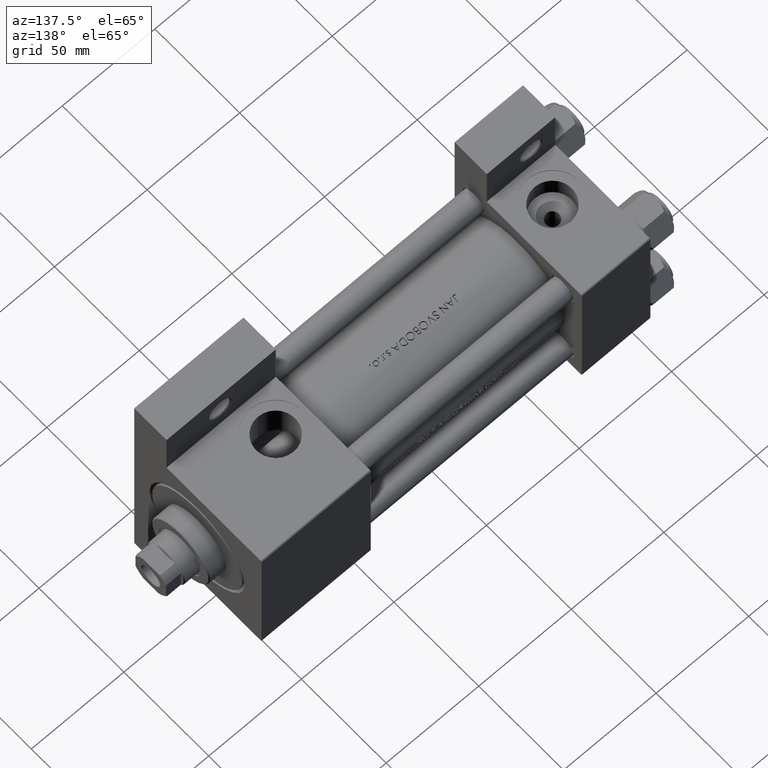
[diagram: clean part render]
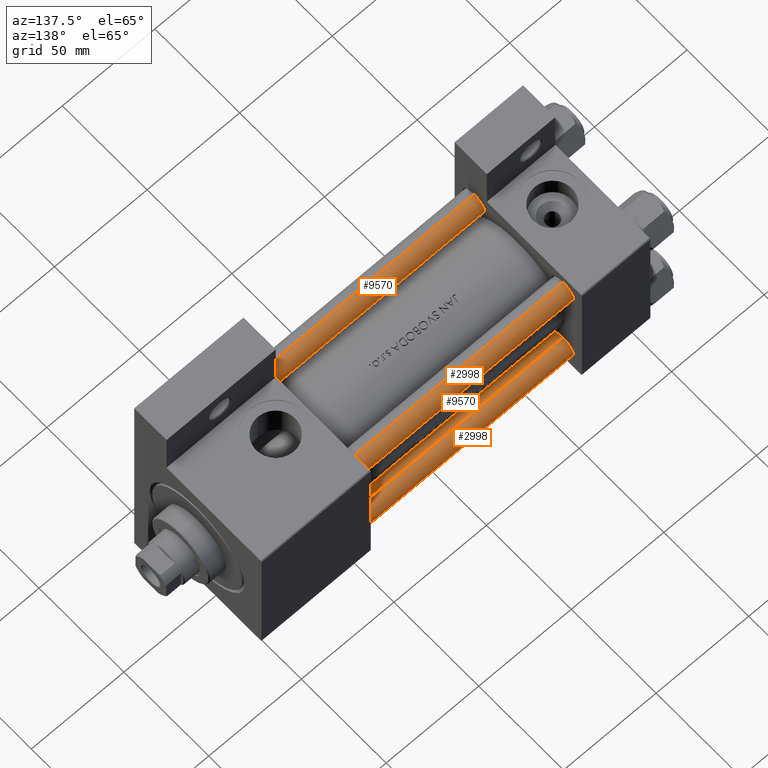
[diagram: same view with one multi-face feature highlighted, each face labeled with its STEP entity id]
A machine part, auxiliary view. The highlighted faces form ONE feature: a constant-radius fillet chain: 4 tangent blend faces with common blend radius 6 mm. The faces share edges in the B-rep.
Their STEP definitions:
[1] entity #2998 (Cylinder):
#312 = DIRECTION ( 'NONE',  ( 1.000000000000000000, 0.000000000000000000, 0.000000000000000000 ) ) ;
#1968 = VERTEX_POINT ( 'NONE', #25017 ) ;
#1975 = DIRECTION ( 'NONE',  ( 1.000000000000000000, 0.000000000000000000, 0.000000000000000000 ) ) ;
#2342 = AXIS2_PLACEMENT_3D ( 'NONE', #23512, #38950, #13515 ) ;
#2998 = ADVANCED_FACE ( 'NONE', ( #12028 ), #23762, .T. ) ;
#3352 = VECTOR ( 'NONE', #36297, 1000.000000000000000 ) ;
#3506 = CARTESIAN_POINT ( 'NONE',  ( 6.000000000000000888, 7.347880794884119736E-16, 179.5000000000001137 ) ) ;
#5469 = CARTESIAN_POINT ( 'NONE',  ( 0.000000000000000000, 0.000000000000000000, 0.5000000000000559552 ) ) ;
#9577 = ORIENTED_EDGE ( 'NONE', *, *, #24014, .T. ) ;
#11483 = EDGE_CURVE ( 'NONE', #27546, #28308, #48598, .T. ) ;
#11575 = ORIENTED_EDGE ( 'NONE', *, *, #37029, .F. ) ;
#12028 = FACE_OUTER_BOUND ( 'NONE', #31228, .T. ) ;
#13515 = DIRECTION ( 'NONE',  ( -1.000000000000000000, 0.000000000000000000, 0.000000000000000000 ) ) ;
#14325 = CARTESIAN_POINT ( 'NONE',  ( -6.000000000000000888, 0.000000000000000000, 180.0000000000000000 ) ) ;
#14580 = ORIENTED_EDGE ( 'NONE', *, *, #16681, .T. ) ;
#16681 = EDGE_CURVE ( 'NONE', #44809, #1968, #49059, .T. ) ;
#20936 = CARTESIAN_POINT ( 'NONE',  ( -6.000000000000000888, 0.000000000000000000, 179.5000000000001137 ) ) ;
#23512 = CARTESIAN_POINT ( 'NONE',  ( 0.000000000000000000, 0.000000000000000000, 180.0000000000000000 ) ) ;
#23762 = CYLINDRICAL_SURFACE ( 'NONE', #2342, 6.000000000000000888 ) ;
#24014 = EDGE_CURVE ( 'NONE', #28308, #44809, #27811, .T. ) ;
#24085 = DIRECTION ( 'NONE',  ( -0.000000000000000000, -0.000000000000000000, -1.000000000000000000 ) ) ;
#25017 = CARTESIAN_POINT ( 'NONE',  ( -6.000000000000000888, 0.000000000000000000, 0.5000000000000559552 ) ) ;
#27152 = AXIS2_PLACEMENT_3D ( 'NONE', #34699, #38928, #312 ) ;
#27546 = VERTEX_POINT ( 'NONE', #20936 ) ;
#27811 = LINE ( 'NONE', #34785, #46010 ) ;
#28308 = VERTEX_POINT ( 'NONE', #3506 ) ;
#31228 = EDGE_LOOP ( 'NONE', ( #35166, #9577, #14580, #11575 ) ) ;
#34699 = CARTESIAN_POINT ( 'NONE',  ( 0.000000000000000000, 0.000000000000000000, 179.5000000000001137 ) ) ;
#34785 = CARTESIAN_POINT ( 'NONE',  ( 6.000000000000000888, 7.347880794884119736E-16, 180.0000000000000000 ) ) ;
#35166 = ORIENTED_EDGE ( 'NONE', *, *, #11483, .T. ) ;
#36297 = DIRECTION ( 'NONE',  ( -0.000000000000000000, -0.000000000000000000, -1.000000000000000000 ) ) ;
#36605 = DIRECTION ( 'NONE',  ( -0.000000000000000000, -0.000000000000000000, 1.000000000000000000 ) ) ;
#37029 = EDGE_CURVE ( 'NONE', #27546, #1968, #44248, .T. ) ;
#38795 = CARTESIAN_POINT ( 'NONE',  ( 6.000000000000000888, 7.347880794884119736E-16, 0.5000000000000559552 ) ) ;
#38928 = DIRECTION ( 'NONE',  ( 0.000000000000000000, 0.000000000000000000, -1.000000000000000000 ) ) ;
#38950 = DIRECTION ( 'NONE',  ( -0.000000000000000000, -0.000000000000000000, -1.000000000000000000 ) ) ;
#40314 = AXIS2_PLACEMENT_3D ( 'NONE', #5469, #36605, #1975 ) ;
#44248 = LINE ( 'NONE', #14325, #3352 ) ;
#44809 = VERTEX_POINT ( 'NONE', #38795 ) ;
#46010 = VECTOR ( 'NONE', #24085, 1000.000000000000000 ) ;
#48598 = CIRCLE ( 'NONE', #27152, 6.000000000000000888 ) ;
#49059 = CIRCLE ( 'NONE', #40314, 6.000000000000000888 ) ;
[2] entity #9570 (Cylinder):
#169 = AXIS2_PLACEMENT_3D ( 'NONE', #38430, #38926, #46889 ) ;
#1968 = VERTEX_POINT ( 'NONE', #25017 ) ;
#3288 = CIRCLE ( 'NONE', #8100, 6.000000000000000888 ) ;
#3352 = VECTOR ( 'NONE', #36297, 1000.000000000000000 ) ;
#3506 = CARTESIAN_POINT ( 'NONE',  ( 6.000000000000000888, 7.347880794884119736E-16, 179.5000000000001137 ) ) ;
#4764 = DIRECTION ( 'NONE',  ( -0.000000000000000000, -0.000000000000000000, 1.000000000000000000 ) ) ;
#6023 = ORIENTED_EDGE ( 'NONE', *, *, #22810, .T. ) ;
#8100 = AXIS2_PLACEMENT_3D ( 'NONE', #43149, #13729, #39909 ) ;
#8852 = EDGE_CURVE ( 'NONE', #28308, #27546, #3288, .T. ) ;
#9570 = ADVANCED_FACE ( 'NONE', ( #31461 ), #19247, .T. ) ;
#13502 = ORIENTED_EDGE ( 'NONE', *, *, #24014, .F. ) ;
#13729 = DIRECTION ( 'NONE',  ( 0.000000000000000000, 0.000000000000000000, -1.000000000000000000 ) ) ;
#14325 = CARTESIAN_POINT ( 'NONE',  ( -6.000000000000000888, 0.000000000000000000, 180.0000000000000000 ) ) ;
#18882 = CIRCLE ( 'NONE', #30066, 6.000000000000000888 ) ;
#19247 = CYLINDRICAL_SURFACE ( 'NONE', #169, 6.000000000000000888 ) ;
#19971 = DIRECTION ( 'NONE',  ( 1.000000000000000000, 0.000000000000000000, 0.000000000000000000 ) ) ;
#20398 = ORIENTED_EDGE ( 'NONE', *, *, #37029, .T. ) ;
#20936 = CARTESIAN_POINT ( 'NONE',  ( -6.000000000000000888, 0.000000000000000000, 179.5000000000001137 ) ) ;
#22810 = EDGE_CURVE ( 'NONE', #1968, #44809, #18882, .T. ) ;
#24014 = EDGE_CURVE ( 'NONE', #28308, #44809, #27811, .T. ) ;
#24085 = DIRECTION ( 'NONE',  ( -0.000000000000000000, -0.000000000000000000, -1.000000000000000000 ) ) ;
#25017 = CARTESIAN_POINT ( 'NONE',  ( -6.000000000000000888, 0.000000000000000000, 0.5000000000000559552 ) ) ;
#27546 = VERTEX_POINT ( 'NONE', #20936 ) ;
#27811 = LINE ( 'NONE', #34785, #46010 ) ;
#28308 = VERTEX_POINT ( 'NONE', #3506 ) ;
#28720 = EDGE_LOOP ( 'NONE', ( #13502, #30531, #20398, #6023 ) ) ;
#30066 = AXIS2_PLACEMENT_3D ( 'NONE', #38912, #4764, #19971 ) ;
#30531 = ORIENTED_EDGE ( 'NONE', *, *, #8852, .T. ) ;
#31461 = FACE_OUTER_BOUND ( 'NONE', #28720, .T. ) ;
#34785 = CARTESIAN_POINT ( 'NONE',  ( 6.000000000000000888, 7.347880794884119736E-16, 180.0000000000000000 ) ) ;
#36297 = DIRECTION ( 'NONE',  ( -0.000000000000000000, -0.000000000000000000, -1.000000000000000000 ) ) ;
#37029 = EDGE_CURVE ( 'NONE', #27546, #1968, #44248, .T. ) ;
#38430 = CARTESIAN_POINT ( 'NONE',  ( 0.000000000000000000, 0.000000000000000000, 180.0000000000000000 ) ) ;
#38795 = CARTESIAN_POINT ( 'NONE',  ( 6.000000000000000888, 7.347880794884119736E-16, 0.5000000000000559552 ) ) ;
#38912 = CARTESIAN_POINT ( 'NONE',  ( 0.000000000000000000, 0.000000000000000000, 0.5000000000000559552 ) ) ;
#38926 = DIRECTION ( 'NONE',  ( -0.000000000000000000, -0.000000000000000000, -1.000000000000000000 ) ) ;
#39909 = DIRECTION ( 'NONE',  ( 1.000000000000000000, 0.000000000000000000, 0.000000000000000000 ) ) ;
#43149 = CARTESIAN_POINT ( 'NONE',  ( 0.000000000000000000, 0.000000000000000000, 179.5000000000001137 ) ) ;
#44248 = LINE ( 'NONE', #14325, #3352 ) ;
#44809 = VERTEX_POINT ( 'NONE', #38795 ) ;
#46010 = VECTOR ( 'NONE', #24085, 1000.000000000000000 ) ;
#46889 = DIRECTION ( 'NONE',  ( -1.000000000000000000, 0.000000000000000000, 0.000000000000000000 ) ) ;
[3] entity #2998 (Cylinder):
#312 = DIRECTION ( 'NONE',  ( 1.000000000000000000, 0.000000000000000000, 0.000000000000000000 ) ) ;
#1968 = VERTEX_POINT ( 'NONE', #25017 ) ;
#1975 = DIRECTION ( 'NONE',  ( 1.000000000000000000, 0.000000000000000000, 0.000000000000000000 ) ) ;
#2342 = AXIS2_PLACEMENT_3D ( 'NONE', #23512, #38950, #13515 ) ;
#2998 = ADVANCED_FACE ( 'NONE', ( #12028 ), #23762, .T. ) ;
#3352 = VECTOR ( 'NONE', #36297, 1000.000000000000000 ) ;
#3506 = CARTESIAN_POINT ( 'NONE',  ( 6.000000000000000888, 7.347880794884119736E-16, 179.5000000000001137 ) ) ;
#5469 = CARTESIAN_POINT ( 'NONE',  ( 0.000000000000000000, 0.000000000000000000, 0.5000000000000559552 ) ) ;
#9577 = ORIENTED_EDGE ( 'NONE', *, *, #24014, .T. ) ;
#11483 = EDGE_CURVE ( 'NONE', #27546, #28308, #48598, .T. ) ;
#11575 = ORIENTED_EDGE ( 'NONE', *, *, #37029, .F. ) ;
#12028 = FACE_OUTER_BOUND ( 'NONE', #31228, .T. ) ;
#13515 = DIRECTION ( 'NONE',  ( -1.000000000000000000, 0.000000000000000000, 0.000000000000000000 ) ) ;
#14325 = CARTESIAN_POINT ( 'NONE',  ( -6.000000000000000888, 0.000000000000000000, 180.0000000000000000 ) ) ;
#14580 = ORIENTED_EDGE ( 'NONE', *, *, #16681, .T. ) ;
#16681 = EDGE_CURVE ( 'NONE', #44809, #1968, #49059, .T. ) ;
#20936 = CARTESIAN_POINT ( 'NONE',  ( -6.000000000000000888, 0.000000000000000000, 179.5000000000001137 ) ) ;
#23512 = CARTESIAN_POINT ( 'NONE',  ( 0.000000000000000000, 0.000000000000000000, 180.0000000000000000 ) ) ;
#23762 = CYLINDRICAL_SURFACE ( 'NONE', #2342, 6.000000000000000888 ) ;
#24014 = EDGE_CURVE ( 'NONE', #28308, #44809, #27811, .T. ) ;
#24085 = DIRECTION ( 'NONE',  ( -0.000000000000000000, -0.000000000000000000, -1.000000000000000000 ) ) ;
#25017 = CARTESIAN_POINT ( 'NONE',  ( -6.000000000000000888, 0.000000000000000000, 0.5000000000000559552 ) ) ;
#27152 = AXIS2_PLACEMENT_3D ( 'NONE', #34699, #38928, #312 ) ;
#27546 = VERTEX_POINT ( 'NONE', #20936 ) ;
#27811 = LINE ( 'NONE', #34785, #46010 ) ;
#28308 = VERTEX_POINT ( 'NONE', #3506 ) ;
#31228 = EDGE_LOOP ( 'NONE', ( #35166, #9577, #14580, #11575 ) ) ;
#34699 = CARTESIAN_POINT ( 'NONE',  ( 0.000000000000000000, 0.000000000000000000, 179.5000000000001137 ) ) ;
#34785 = CARTESIAN_POINT ( 'NONE',  ( 6.000000000000000888, 7.347880794884119736E-16, 180.0000000000000000 ) ) ;
#35166 = ORIENTED_EDGE ( 'NONE', *, *, #11483, .T. ) ;
#36297 = DIRECTION ( 'NONE',  ( -0.000000000000000000, -0.000000000000000000, -1.000000000000000000 ) ) ;
#36605 = DIRECTION ( 'NONE',  ( -0.000000000000000000, -0.000000000000000000, 1.000000000000000000 ) ) ;
#37029 = EDGE_CURVE ( 'NONE', #27546, #1968, #44248, .T. ) ;
#38795 = CARTESIAN_POINT ( 'NONE',  ( 6.000000000000000888, 7.347880794884119736E-16, 0.5000000000000559552 ) ) ;
#38928 = DIRECTION ( 'NONE',  ( 0.000000000000000000, 0.000000000000000000, -1.000000000000000000 ) ) ;
#38950 = DIRECTION ( 'NONE',  ( -0.000000000000000000, -0.000000000000000000, -1.000000000000000000 ) ) ;
#40314 = AXIS2_PLACEMENT_3D ( 'NONE', #5469, #36605, #1975 ) ;
#44248 = LINE ( 'NONE', #14325, #3352 ) ;
#44809 = VERTEX_POINT ( 'NONE', #38795 ) ;
#46010 = VECTOR ( 'NONE', #24085, 1000.000000000000000 ) ;
#48598 = CIRCLE ( 'NONE', #27152, 6.000000000000000888 ) ;
#49059 = CIRCLE ( 'NONE', #40314, 6.000000000000000888 ) ;
[4] entity #9570 (Cylinder):
#169 = AXIS2_PLACEMENT_3D ( 'NONE', #38430, #38926, #46889 ) ;
#1968 = VERTEX_POINT ( 'NONE', #25017 ) ;
#3288 = CIRCLE ( 'NONE', #8100, 6.000000000000000888 ) ;
#3352 = VECTOR ( 'NONE', #36297, 1000.000000000000000 ) ;
#3506 = CARTESIAN_POINT ( 'NONE',  ( 6.000000000000000888, 7.347880794884119736E-16, 179.5000000000001137 ) ) ;
#4764 = DIRECTION ( 'NONE',  ( -0.000000000000000000, -0.000000000000000000, 1.000000000000000000 ) ) ;
#6023 = ORIENTED_EDGE ( 'NONE', *, *, #22810, .T. ) ;
#8100 = AXIS2_PLACEMENT_3D ( 'NONE', #43149, #13729, #39909 ) ;
#8852 = EDGE_CURVE ( 'NONE', #28308, #27546, #3288, .T. ) ;
#9570 = ADVANCED_FACE ( 'NONE', ( #31461 ), #19247, .T. ) ;
#13502 = ORIENTED_EDGE ( 'NONE', *, *, #24014, .F. ) ;
#13729 = DIRECTION ( 'NONE',  ( 0.000000000000000000, 0.000000000000000000, -1.000000000000000000 ) ) ;
#14325 = CARTESIAN_POINT ( 'NONE',  ( -6.000000000000000888, 0.000000000000000000, 180.0000000000000000 ) ) ;
#18882 = CIRCLE ( 'NONE', #30066, 6.000000000000000888 ) ;
#19247 = CYLINDRICAL_SURFACE ( 'NONE', #169, 6.000000000000000888 ) ;
#19971 = DIRECTION ( 'NONE',  ( 1.000000000000000000, 0.000000000000000000, 0.000000000000000000 ) ) ;
#20398 = ORIENTED_EDGE ( 'NONE', *, *, #37029, .T. ) ;
#20936 = CARTESIAN_POINT ( 'NONE',  ( -6.000000000000000888, 0.000000000000000000, 179.5000000000001137 ) ) ;
#22810 = EDGE_CURVE ( 'NONE', #1968, #44809, #18882, .T. ) ;
#24014 = EDGE_CURVE ( 'NONE', #28308, #44809, #27811, .T. ) ;
#24085 = DIRECTION ( 'NONE',  ( -0.000000000000000000, -0.000000000000000000, -1.000000000000000000 ) ) ;
#25017 = CARTESIAN_POINT ( 'NONE',  ( -6.000000000000000888, 0.000000000000000000, 0.5000000000000559552 ) ) ;
#27546 = VERTEX_POINT ( 'NONE', #20936 ) ;
#27811 = LINE ( 'NONE', #34785, #46010 ) ;
#28308 = VERTEX_POINT ( 'NONE', #3506 ) ;
#28720 = EDGE_LOOP ( 'NONE', ( #13502, #30531, #20398, #6023 ) ) ;
#30066 = AXIS2_PLACEMENT_3D ( 'NONE', #38912, #4764, #19971 ) ;
#30531 = ORIENTED_EDGE ( 'NONE', *, *, #8852, .T. ) ;
#31461 = FACE_OUTER_BOUND ( 'NONE', #28720, .T. ) ;
#34785 = CARTESIAN_POINT ( 'NONE',  ( 6.000000000000000888, 7.347880794884119736E-16, 180.0000000000000000 ) ) ;
#36297 = DIRECTION ( 'NONE',  ( -0.000000000000000000, -0.000000000000000000, -1.000000000000000000 ) ) ;
#37029 = EDGE_CURVE ( 'NONE', #27546, #1968, #44248, .T. ) ;
#38430 = CARTESIAN_POINT ( 'NONE',  ( 0.000000000000000000, 0.000000000000000000, 180.0000000000000000 ) ) ;
#38795 = CARTESIAN_POINT ( 'NONE',  ( 6.000000000000000888, 7.347880794884119736E-16, 0.5000000000000559552 ) ) ;
#38912 = CARTESIAN_POINT ( 'NONE',  ( 0.000000000000000000, 0.000000000000000000, 0.5000000000000559552 ) ) ;
#38926 = DIRECTION ( 'NONE',  ( -0.000000000000000000, -0.000000000000000000, -1.000000000000000000 ) ) ;
#39909 = DIRECTION ( 'NONE',  ( 1.000000000000000000, 0.000000000000000000, 0.000000000000000000 ) ) ;
#43149 = CARTESIAN_POINT ( 'NONE',  ( 0.000000000000000000, 0.000000000000000000, 179.5000000000001137 ) ) ;
#44248 = LINE ( 'NONE', #14325, #3352 ) ;
#44809 = VERTEX_POINT ( 'NONE', #38795 ) ;
#46010 = VECTOR ( 'NONE', #24085, 1000.000000000000000 ) ;
#46889 = DIRECTION ( 'NONE',  ( -1.000000000000000000, 0.000000000000000000, 0.000000000000000000 ) ) ;